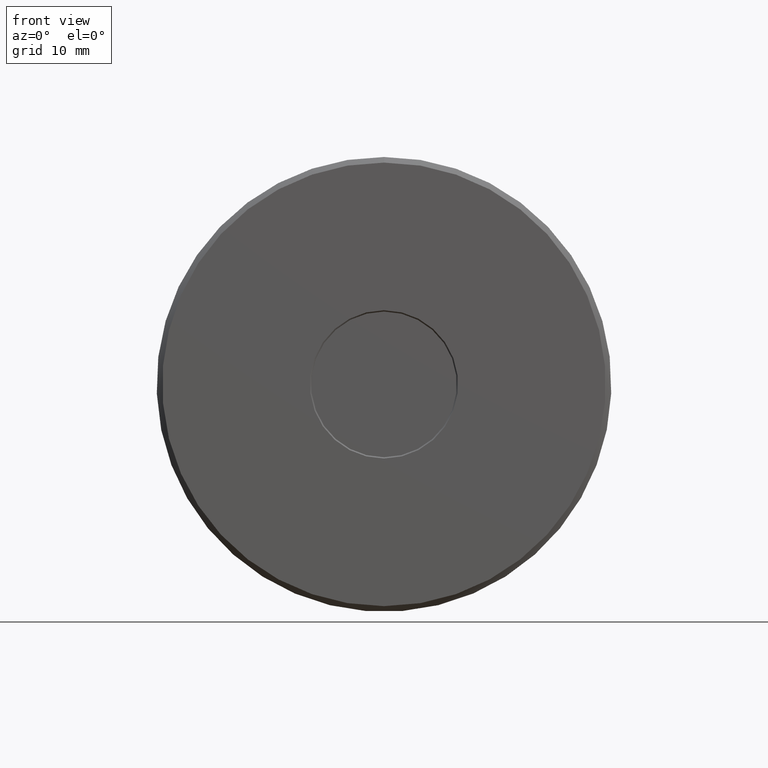
[diagram: clean part render]
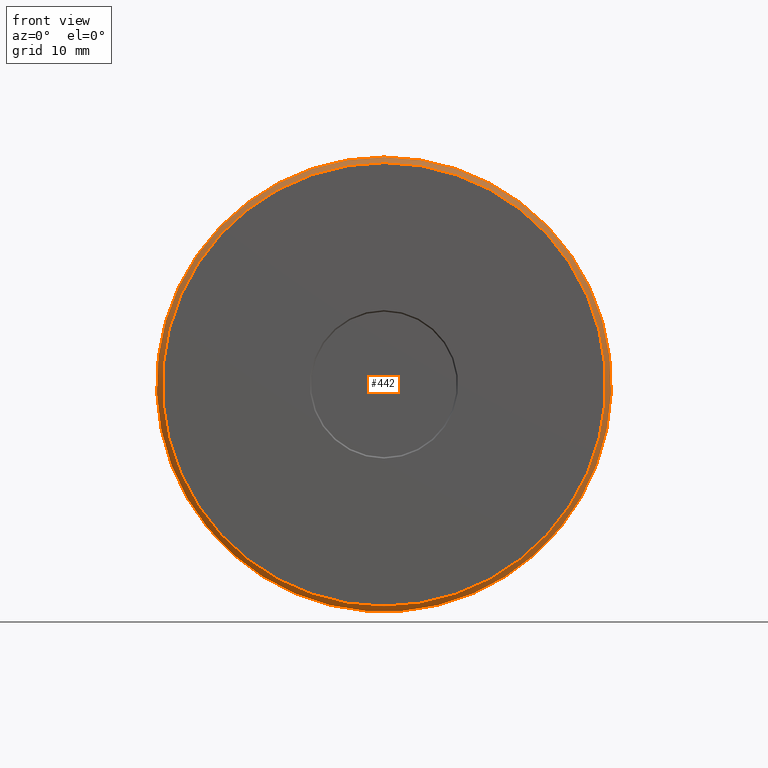
[diagram: same view with one face highlighted and labeled with its STEP entity id]
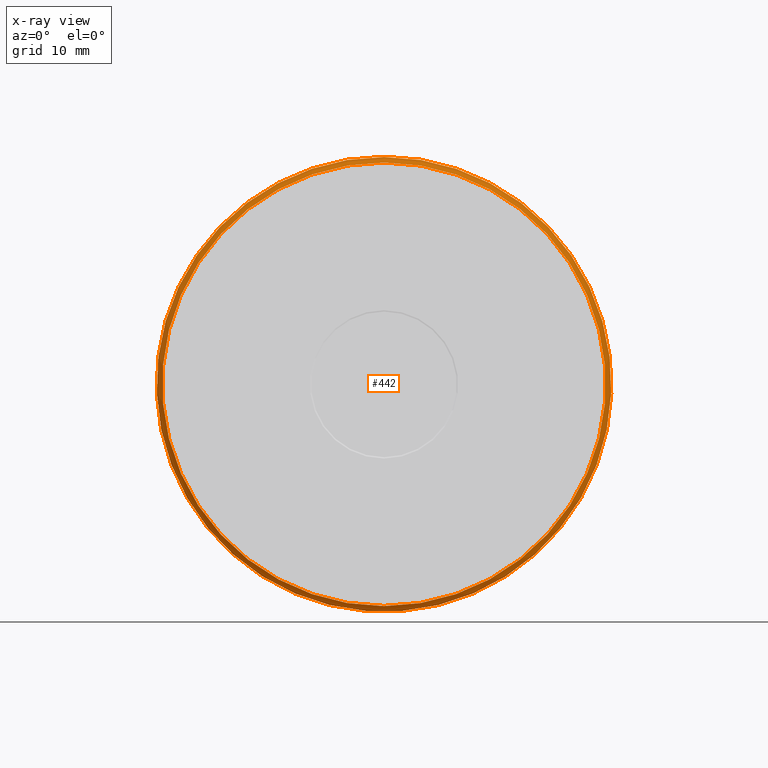
[diagram: x-ray of the same camera — body ghosted, the highlighted face saturated]
A machine part, front view. The second image highlights one B-rep face of the part: STEP entity #442.
The next image is the same camera in x-ray: the body ghosted, the highlighted face saturated — about 0% of this face is hidden behind the body in this view.
In plain terms, the highlighted conical surface has half-angle 45 deg.
Its self-contained STEP definition (entity closure, byte-faithful):
#30 = ORIENTED_EDGE ( 'NONE', *, *, #273, .F. ) ;
#44 = EDGE_LOOP ( 'NONE', ( #81 ) ) ;
#78 = CARTESIAN_POINT ( 'NONE',  ( 0.0000000000000000000, 0.03000000000000006800, 1.218750000000000000 ) ) ;
#81 = ORIENTED_EDGE ( 'NONE', *, *, #299, .T. ) ;
#174 = EDGE_LOOP ( 'NONE', ( #30 ) ) ;
#217 = FACE_BOUND ( 'NONE', #44, .T. ) ;
#227 = DIRECTION ( 'NONE',  ( 0.0000000000000000000, 0.0000000000000000000, 1.000000000000000000 ) ) ;
#244 = CIRCLE ( 'NONE', #463, 1.188750000000000000 ) ;
#255 = CARTESIAN_POINT ( 'NONE',  ( 0.0000000000000000000, 0.03000000000000006800, 0.0000000000000000000 ) ) ;
#257 = CARTESIAN_POINT ( 'NONE',  ( 0.0000000000000000000, -1.912000795689885100E-016, 0.0000000000000000000 ) ) ;
#273 = EDGE_CURVE ( 'NONE', #437, #437, #490, .T. ) ;
#298 = DIRECTION ( 'NONE',  ( 0.0000000000000000000, 0.0000000000000000000, 1.000000000000000000 ) ) ;
#299 = EDGE_CURVE ( 'NONE', #329, #329, #244, .T. ) ;
#300 = DIRECTION ( 'NONE',  ( 0.0000000000000000000, 0.0000000000000000000, 1.000000000000000000 ) ) ;
#305 = DIRECTION ( 'NONE',  ( -0.0000000000000000000, 1.000000000000000000, -0.0000000000000000000 ) ) ;
#329 = VERTEX_POINT ( 'NONE', #352 ) ;
#345 = CARTESIAN_POINT ( 'NONE',  ( 0.0000000000000000000, 0.03000000000000006800, 0.0000000000000000000 ) ) ;
#346 = AXIS2_PLACEMENT_3D ( 'NONE', #345, #305, #227 ) ;
#352 = CARTESIAN_POINT ( 'NONE',  ( 0.0000000000000000000, -1.912000795689885100E-016, 1.188750000000000000 ) ) ;
#384 = AXIS2_PLACEMENT_3D ( 'NONE', #255, #536, #298 ) ;
#390 = FACE_OUTER_BOUND ( 'NONE', #174, .T. ) ;
#437 = VERTEX_POINT ( 'NONE', #78 ) ;
#442 = ADVANCED_FACE ( 'NONE', ( #217, #390 ), #485, .T. ) ;
#463 = AXIS2_PLACEMENT_3D ( 'NONE', #257, #540, #300 ) ;
#485 = CONICAL_SURFACE ( 'NONE', #346, 1.218750000000000000, 0.7853981633974431700 ) ;
#490 = CIRCLE ( 'NONE', #384, 1.218750000000000000 ) ;
#536 = DIRECTION ( 'NONE',  ( -0.0000000000000000000, 1.000000000000000000, -0.0000000000000000000 ) ) ;
#540 = DIRECTION ( 'NONE',  ( -0.0000000000000000000, 1.000000000000000000, -0.0000000000000000000 ) ) ;